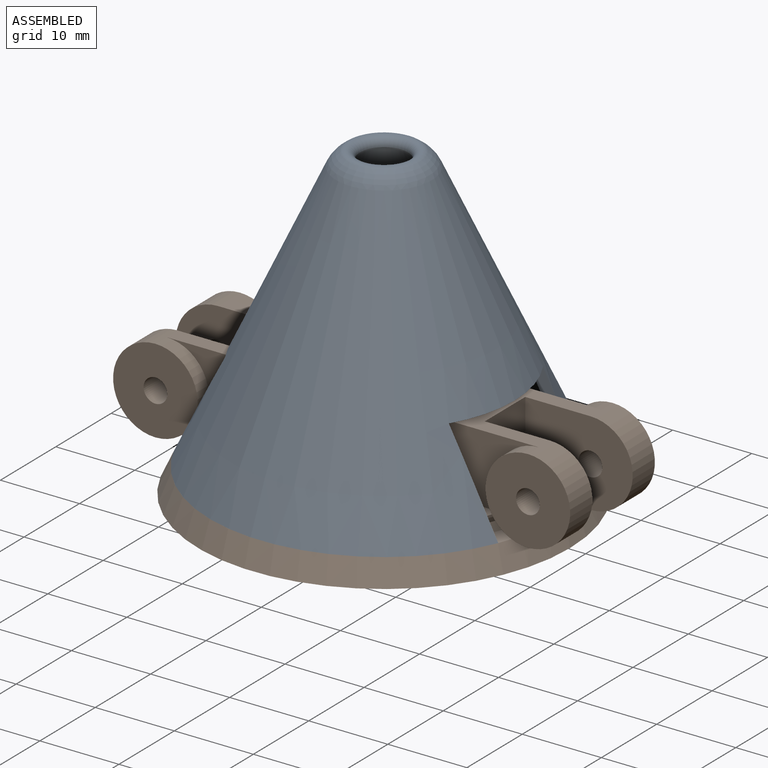
[diagram: assembled view]
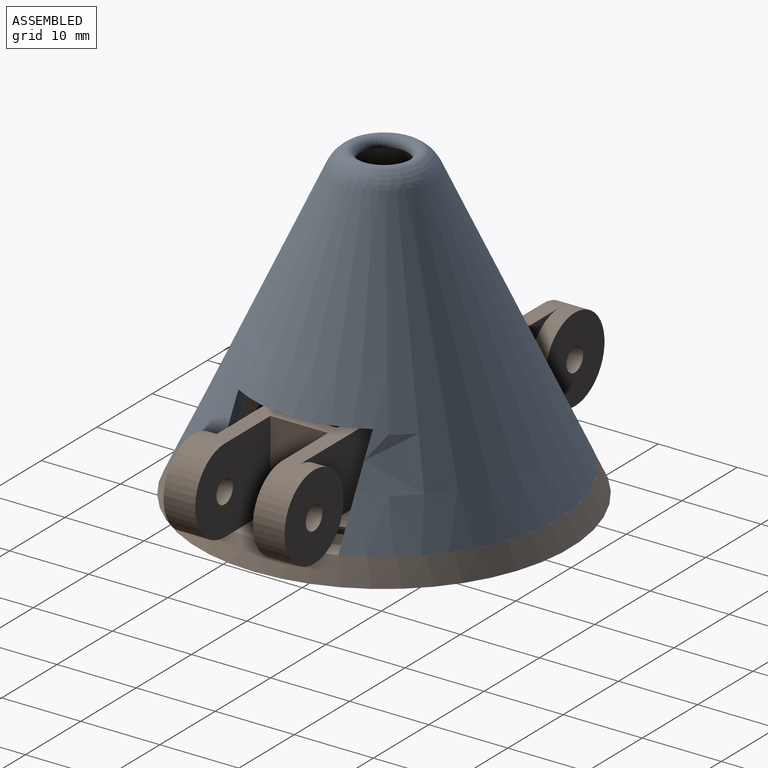
[diagram: assembled view, second angle]
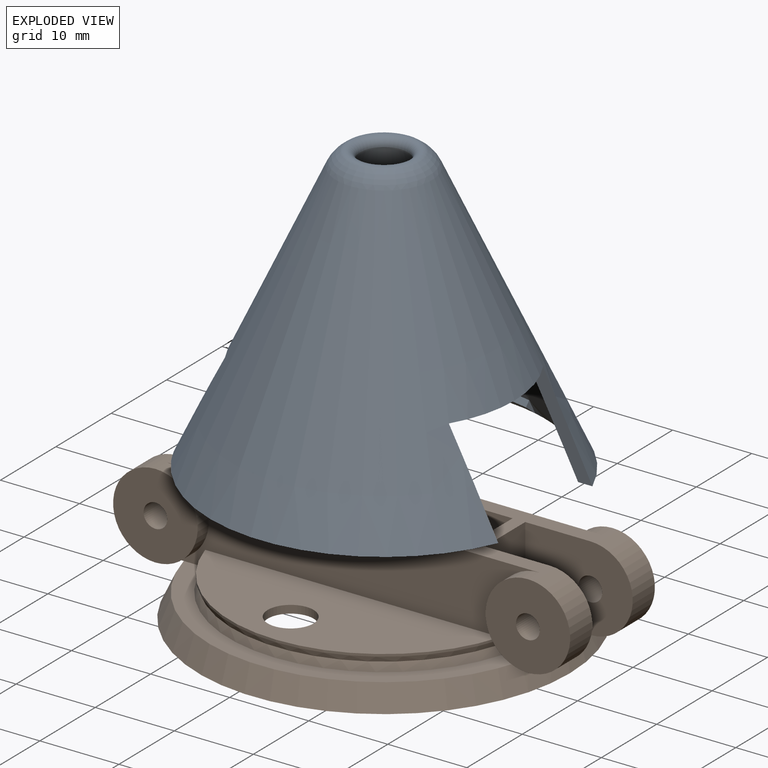
[diagram: exploded view]
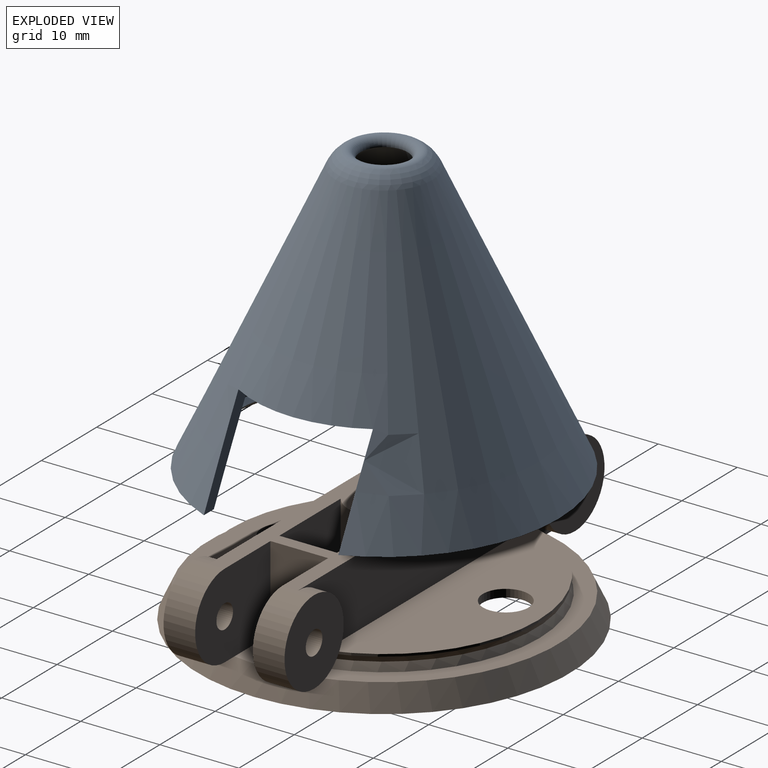
[diagram: exploded view, second angle]
ASSEMBLY  parts=2 mates=2
PART A: 23 faces, bbox 44.8x44.8x36.8 mm
  f0: cone r=20.74mm half-angle=25deg, axis (0,0,-1), area 2464.8mm2, adj f1,f4,f5,f6,f7,f8,f9,f10
  f1: plane 40.83x13.63mm, normal (0,0,-1), area 81.6mm2, adj f0,f2,f3,f7,f10,f22
  f2: cone r=22.1mm half-angle=25deg, axis (0,0,-1), area 2863.9mm2, adj f1,f3,f4,f6,f7,f8,f9,f11
  f3: cone r=22.1mm half-angle=25deg, axis (0,0,-1), area 19.6mm2, adj f1,f2,f10
  f4: plane 40.83x13.63mm, normal (0,0,-1), area 81.6mm2, adj f0,f2,f6,f11,f21
  f5: plane 8.09x8.09mm, normal (0,0,-1), area 23.1mm2, adj f0,f18
  f6: plane 12.57x8.8mm, normal (-1,0,0), area 22.5mm2, adj f0,f2,f4,f8
  f7: plane 12.57x8.8mm, normal (1,0,0), area 22.5mm2, adj f0,f1,f2,f8
  f8: plane 17x4.33mm, normal (0,0,-1), area 29.7mm2, adj f0,f2,f6,f7
  f9: plane 17x4.33mm, normal (0,0,-1), area 29.7mm2, adj f0,f2,f10,f11
  f10: plane 12.58x8.8mm, normal (1,0,0), area 22.5mm2, adj f0,f1,f3,f9
  f11: plane 12.58x8.8mm, normal (-1,0,0), area 22.5mm2, adj f0,f2,f4,f9
  f12: cone r=19.63mm half-angle=31.8deg, axis (0,0,1), area 8.3mm2, adj f0,f13,f14,f22
  f13: plane 1.76x1.21mm, normal (0.26,0.97,0), area 0.7mm2, adj f0,f12,f22
  f14: plane 1.76x1.21mm, normal (0.26,-0.97,0), area 0.7mm2, adj f0,f12,f22
  f15: cone r=19.63mm half-angle=31.8deg, axis (0,0,1), area 8.3mm2, adj f0,f16,f17,f21
  f16: plane 1.76x1.21mm, normal (-0.26,0.97,0), area 0.7mm2, adj f0,f15,f21
  f17: plane 1.76x1.21mm, normal (-0.26,-0.97,0), area 0.7mm2, adj f0,f15,f21
  f18: cylinder r=3mm len=6mm, axis (0,0,-1), area 1.9mm2, adj f5,f20
  f19: torus R=2.43mm, axis (0,0,1), area 79mm2, adj f2,f20
  f20: torus R=4mm, axis (0,0,-1), area 47.9mm2, adj f18,f19
  f21: cone r=20.45mm half-angle=49.8deg, axis (0,0,-1), area 16.9mm2, adj f4,f15,f16,f17
  f22: cone r=20.45mm half-angle=49.8deg, axis (0,0,-1), area 16.9mm2, adj f1,f12,f13,f14
PART B: 60 faces, bbox 58x47.2x13.9 mm
  f0: cylinder r=2.9mm len=5.8mm, axis (0,0,1), area 18.2mm2, adj f27,f54
  f1: cylinder r=2.9mm len=5.8mm, axis (0,0,1), area 18.2mm2, adj f20,f56
  f2: plane 42.13x42.13mm, normal (0,0,-1), area 620.4mm2, adj f3,f53,f55,f57,f58,f59
  f3: cylinder r=2.1mm len=11.7mm, axis (0,0,1), area 154.4mm2, adj f2,f14
  f4: plane 11.07x7.3mm, normal (0,0,1), area 71.2mm2, adj f5,f7,f37,f51
  f5: plane 11.07x10.7mm, normal (0,-1,0), area 118.4mm2, adj f4,f14,f37,f51
  f6: plane 11.07x10.7mm, normal (0,-1,0), area 118.4mm2, adj f14,f36,f38,f52
  f7: plane 11.07x10.7mm, normal (0,1,0), area 118.4mm2, adj f4,f14,f37,f51
  f8: plane 11.07x10.7mm, normal (0,1,0), area 118.4mm2, adj f14,f36,f38,f52
  f9: plane 47.1x10.7mm, normal (0,-1,0), area 339.8mm2, adj f14,f16,f24,f25,f26,f27,f28,f29
  f10: plane 47.1x10.7mm, normal (0,1,0), area 339.8mm2, adj f11,f12,f13,f14,f15,f17,f18,f19
  f11: plane 2.18x2mm, normal (0,0,-1), area 3.9mm2, adj f10,f15,f22,f33
  f12: plane 2.18x2mm, normal (0,0,-1), area 3.9mm2, adj f10,f13,f22,f39
  f13: cylinder r=5.35mm len=10.7mm, axis (0,1,0), area 100.8mm2, adj f10,f12,f14,f39,f44
  f14: plane 47.1x11.3mm, normal (0,0,1), area 255.4mm2, adj f3,f5,f6,f7,f8,f9,f10,f13
  f15: cylinder r=5.35mm len=10.7mm, axis (0,1,0), area 100.8mm2, adj f10,f11,f14,f33,f49
  f16: plane 42.73x16.45mm, normal (0,0,1), area 131.9mm2, adj f9,f22,f24
  f17: cone r=19.67mm half-angle=25deg, axis (0,0,-1), area 54.7mm2, adj f10,f18,f23
  f18: cone r=19.2mm half-angle=23.2deg, axis (0,0,1), area 37.6mm2, adj f10,f17,f19
  f19: cylinder r=19.5mm len=37.33mm, axis (0,0,1), area 14.9mm2, adj f10,f18,f20
  f20: plane 37.33x13.85mm, normal (0,0,1), area 353.6mm2, adj f1,f10,f19
  f21: plane 47x47mm, normal (0,0,-1), area 214.4mm2, adj f22,f53
  f22: cone r=23.5mm half-angle=25deg, axis (0,0,-1), area 474.2mm2, adj f11,f12,f16,f21,f23,f28,f29,f32
  f23: plane 42.73x16.45mm, normal (0,0,1), area 131.9mm2, adj f10,f17,f22
  f24: cone r=19.67mm half-angle=25deg, axis (0,0,-1), area 54.7mm2, adj f9,f16,f25
  f25: cone r=19.2mm half-angle=23.2deg, axis (0,0,1), area 37.6mm2, adj f9,f24,f26
  f26: cylinder r=19.5mm len=37.33mm, axis (0,0,1), area 14.9mm2, adj f9,f25,f27
  f27: plane 37.33x13.85mm, normal (0,0,1), area 353.6mm2, adj f0,f9,f26
  f28: plane 2.18x2mm, normal (0,0,-1), area 3.9mm2, adj f9,f22,f31,f34
  f29: plane 2.18x2mm, normal (0,0,-1), area 3.9mm2, adj f9,f22,f30,f40
  f30: cylinder r=5.35mm len=10.7mm, axis (0,1,0), area 100.8mm2, adj f9,f14,f29,f40,f43
  f31: cylinder r=5.35mm len=10.7mm, axis (0,1,0), area 100.8mm2, adj f9,f14,f28,f34,f50
  f32: plane 7.3x6.8mm, normal (0,0,1), area 48.9mm2, adj f22,f33,f34,f35
  f33: plane 13.6x10.7mm, normal (0,-1,0), area 126.2mm2, adj f11,f14,f15,f32,f35,f48
  f34: plane 13.6x10.7mm, normal (0,1,0), area 126.2mm2, adj f14,f28,f31,f32,f35,f47
  f35: plane 10.7x7.3mm, normal (-1,0,0), area 78.1mm2, adj f14,f32,f33,f34
  f36: plane 11.07x7.3mm, normal (0,0,1), area 71.2mm2, adj f6,f8,f38,f52
  f37: plane 10.7x7.3mm, normal (1,0,0), area 78.1mm2, adj f4,f5,f7,f14
  f38: plane 10.7x7.3mm, normal (-1,0,0), area 78.1mm2, adj f6,f8,f14,f36
  f39: plane 13.6x10.7mm, normal (0,-1,0), area 126.2mm2, adj f12,f13,f14,f41,f42,f45
  f40: plane 13.6x10.7mm, normal (0,1,0), area 126.2mm2, adj f14,f29,f30,f41,f42,f46
  f41: plane 7.3x6.8mm, normal (0,0,1), area 48.9mm2, adj f22,f39,f40,f42
  f42: plane 10.7x7.3mm, normal (1,0,0), area 78.1mm2, adj f14,f39,f40,f41
  f43: plane 10.7x10.7mm, normal (0,-1,0), area 82.9mm2, adj f30,f46
  f44: plane 10.7x10.7mm, normal (0,1,0), area 82.9mm2, adj f13,f45
  f45: cylinder r=1.5mm len=4mm, axis (0,1,0), area 37.7mm2, adj f39,f44
  f46: cylinder r=1.5mm len=4mm, axis (0,1,0), area 37.7mm2, adj f40,f43
  f47: cylinder r=1.5mm len=4mm, axis (0,1,0), area 37.7mm2, adj f34,f50
  f48: cylinder r=1.5mm len=4mm, axis (0,1,0), area 37.7mm2, adj f33,f49
  f49: plane 10.7x10.7mm, normal (0,1,0), area 82.9mm2, adj f15,f48
  f50: plane 10.7x10.7mm, normal (0,-1,0), area 82.9mm2, adj f31,f47
  f51: cylinder r=4.5mm len=10.7mm, axis (0,0,-1), area 91.1mm2, adj f4,f5,f7,f14
  f52: cylinder r=4.5mm len=10.7mm, axis (0,0,-1), area 91.1mm2, adj f6,f8,f14,f36
  f53: cone r=21.07mm half-angle=25deg, axis (0,0,-1), area 298.6mm2, adj f2,f21
  f54: plane 33.13x11.85mm, normal (0,0,-1), area 260.4mm2, adj f0,f55,f58
  f55: plane 37.56x2.23mm, normal (0,-1,0), area 68.1mm2, adj f2,f54,f58
  f56: plane 33.13x11.85mm, normal (0,0,-1), area 260.4mm2, adj f1,f57,f59
  f57: plane 37.56x2.23mm, normal (0,1,0), area 68.1mm2, adj f2,f56,f59
  f58: torus R=19.5mm, axis (0,0,-1), area 144.3mm2, adj f2,f54,f55
  f59: torus R=19.5mm, axis (0,0,-1), area 144.3mm2, adj f2,f56,f57
PLACE A rot(axis=(0,0,1),90deg) t=(-6.46,-7.17,-3.81)mm
PLACE B t=(-6.46,-7.17,-6.81)mm
MATE slider A.f18 <-> B.f3  axis (0,0,-1) through (-6.46,-7.17,31.36)mm
MATE parallel A.f4 <-> B.f23  axis (0,0,-1) through (-6.46,9.65,-3.81)mm
